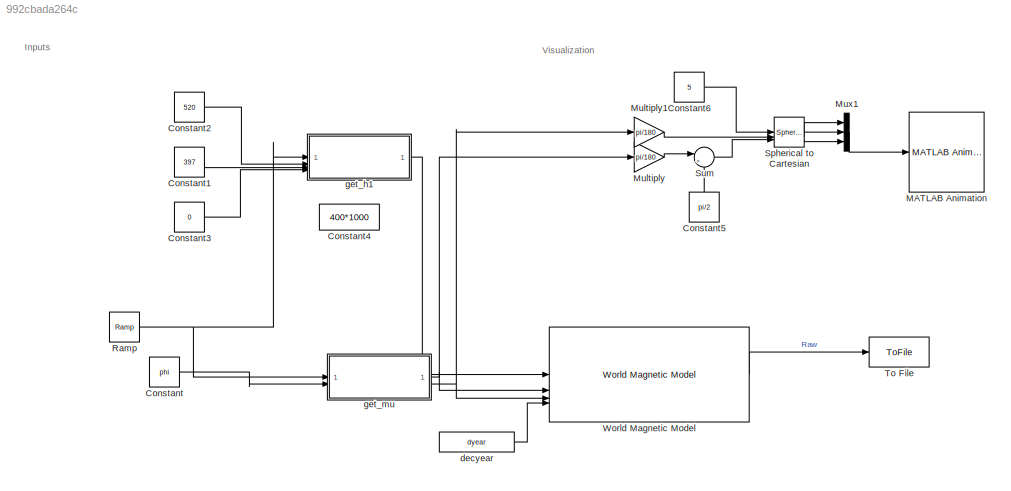
MODEL slx_992cbada264c
KIND model
CONFIG AbsTol = auto
CONFIG EnableMultiTasking = off
CONFIG FixedStep = 1
CONFIG MaxStep = 10
CONFIG MinStep = 1
CONFIG RelTol = 1e-3
CONFIG SampleTimeConstraint = Unconstrained
CONFIG SolverName = FixedStepAuto
CONFIG StartTime = 0.0
CONFIG StopTime = 24670
WORKSPACE source: mxarray member
WORKSPACE dyear = 2024.38251366
WORKSPACE phi = 1.71042266695
BLOCK [Constant] Constant
  Value = phi
BLOCK [Constant] Constant1
  Value = 397
BLOCK [Constant] Constant2
  Value = 520
BLOCK [Constant] Constant3
  Value = 0
BLOCK [Constant] Constant4
  Value = 400*1000
BLOCK [Constant] Constant5
  NameLocation = right
  Value = pi/2
BLOCK [Constant] Constant6
  Value = 5
BLOCK [Reference] MATLAB Animation  REF=aerolibanim/MATLAB
Animation
  Commented = on
  SourceBlock = aerolibanim/MATLAB\nAnimation
  SourceType = AeroMATLABAnimation
  Tag = Matlab Animation 6 DOF
BLOCK [Gain] Multiply
  Gain = pi/180
BLOCK [Gain] Multiply1
  Gain = pi/180
BLOCK [Mux] Mux1
  DisplayOption = bar
  Inputs = 3
BLOCK [Reference] Ramp  REF=simulink/Sources/Ramp
  SourceBlock = simulink/Sources/Ramp
  SourceType = Ramp
BLOCK [Reference] Spherical to Cartesian  REF=simulink_extras/Transformations/Spherical to
Cartesian
  SourceBlock = simulink_extras/Transformations/Spherical to\nCartesian
  SourceType = Sph2Cart
BLOCK [Sum] Sum
  Inputs = |+-
BLOCK [ToFile] To File
  Filename = MagFieldData.mat
  MatrixName = XYZ
  SaveFormat = Timeseries
BLOCK [Reference] World Magnetic Model  REF=aerolibgravity2/World Magnetic Model
  AttributesFormatString = %<model>
  SourceBlock = aerolibgravity2/World Magnetic Model
  SourceType = WorldMagneticModel
BLOCK [Constant] decyear
  Value = dyear
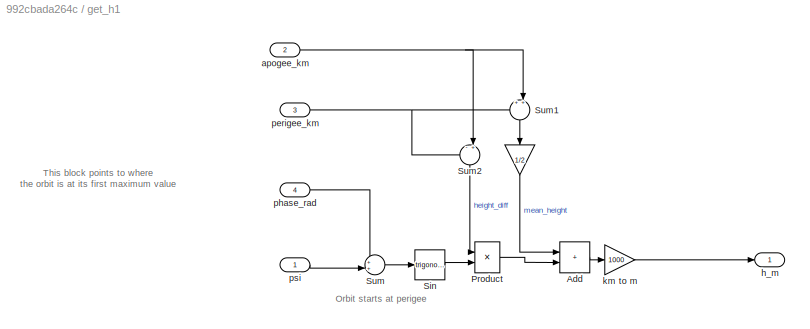
BLOCK [SubSystem] get_h1
BLOCK [Gain] get_h1/ 
  Gain = 1/2
  NameLocation = right
BLOCK [Sum] get_h1/Add
  IconShape = rectangular
BLOCK [Product] get_h1/Product
BLOCK [Trigonometry] get_h1/Sin
BLOCK [Sum] get_h1/Sum
  Inputs = ++|
BLOCK [Sum] get_h1/Sum1
  Inputs = ++|
  NameLocation = left
BLOCK [Sum] get_h1/Sum2
  Inputs = -+|
  NameLocation = left
BLOCK [Inport] get_h1/apogee_km
  Port = 2
BLOCK [Outport] get_h1/h_m
BLOCK [Gain] get_h1/km to m
  Gain = 1000
  NameLocation = top
BLOCK [Inport] get_h1/perigee_km
  Port = 3
BLOCK [Inport] get_h1/phase_rad
  Port = 4
BLOCK [Inport] get_h1/psi
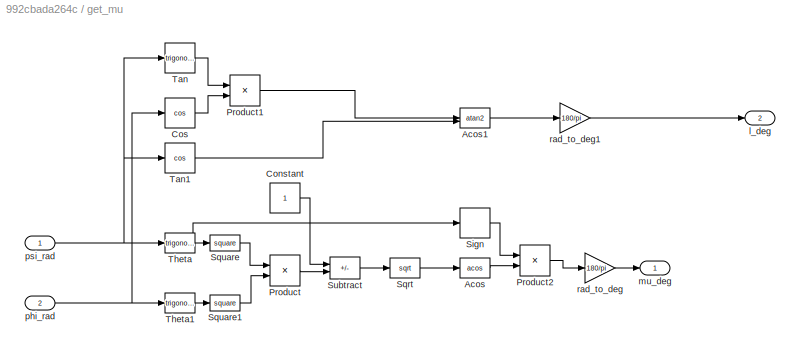
BLOCK [SubSystem] get_mu
BLOCK [Trigonometry] get_mu/Acos
  Operator = acos
BLOCK [Trigonometry] get_mu/Acos1
  Operator = atan2
BLOCK [Constant] get_mu/Constant
BLOCK [Trigonometry] get_mu/Cos
  Operator = cos
BLOCK [Product] get_mu/Product
BLOCK [Product] get_mu/Product1
BLOCK [Product] get_mu/Product2
BLOCK [Signum] get_mu/Sign
BLOCK [Sqrt] get_mu/Sqrt
BLOCK [Math] get_mu/Square
  Operator = square
BLOCK [Math] get_mu/Square1
  Operator = square
BLOCK [Sum] get_mu/Subtract
  IconShape = rectangular
  Inputs = +-
BLOCK [Trigonometry] get_mu/Tan
BLOCK [Trigonometry] get_mu/Tan1
  Operator = cos
BLOCK [Trigonometry] get_mu/Theta
BLOCK [Trigonometry] get_mu/Theta1
BLOCK [Outport] get_mu/l_deg
  Port = 2
BLOCK [Outport] get_mu/mu_deg
BLOCK [Inport] get_mu/phi_rad
  Port = 2
BLOCK [Inport] get_mu/psi_rad
BLOCK [Gain] get_mu/rad_to_deg
  Gain = 180/pi
BLOCK [Gain] get_mu/rad_to_deg1
  Gain = 180/pi
ANNOTATION (root): Inputs
ANNOTATION (root): Visualization
ANNOTATION get_h1: Orbit starts at perigee
ANNOTATION get_h1: This block points to where the orbit is at its first maximum value
LINE Constant1:1 -> get_h1:3
LINE Constant2:1 -> get_h1:2
LINE Constant3:1 -> get_h1:4
LINE Constant5:1 -> Sum:2
LINE Constant6:1 -> Spherical to Cartesian:1
LINE Constant:1 -> get_mu:2
LINE Multiply1:1 -> Spherical to Cartesian:2
LINE Multiply:1 -> Sum:1
LINE Mux1:1 -> MATLAB Animation:1
NET Ramp:1 -> get_h1:1, get_mu:1
LINE Spherical to Cartesian:1 -> Mux1:1
LINE Spherical to Cartesian:2 -> Mux1:2
LINE Spherical to Cartesian:3 -> Mux1:3
LINE Sum:1 -> Spherical to Cartesian:3
LINE World Magnetic Model:1 -> To File:1
LINE decyear:1 -> World Magnetic Model:4
LINE get_h1/ :1 -> get_h1/Add:1
LINE get_h1/Add:1 -> get_h1/km to m:1
LINE get_h1/Product:1 -> get_h1/Add:2
LINE get_h1/Sin:1 -> get_h1/Product:2
LINE get_h1/Sum1:1 -> get_h1/ :1
LINE get_h1/Sum2:1 -> get_h1/Product:1
LINE get_h1/Sum:1 -> get_h1/Sin:1
NET get_h1/apogee_km:1 -> get_h1/Sum1:2, get_h1/Sum2:2
LINE get_h1/km to m:1 -> get_h1/h_m:1
NET get_h1/perigee_km:1 -> get_h1/Sum1:1, get_h1/Sum2:1
LINE get_h1/phase_rad:1 -> get_h1/Sum:1
LINE get_h1/psi:1 -> get_h1/Sum:2
LINE get_h1:1 -> World Magnetic Model:1
LINE get_mu/Acos1:1 -> get_mu/rad_to_deg1:1
LINE get_mu/Acos:1 -> get_mu/Product2:2
LINE get_mu/Constant:1 -> get_mu/Subtract:1
LINE get_mu/Cos:1 -> get_mu/Product1:2
LINE get_mu/Product1:1 -> get_mu/Acos1:1
LINE get_mu/Product2:1 -> get_mu/rad_to_deg:1
LINE get_mu/Product:1 -> get_mu/Subtract:2
LINE get_mu/Sign:1 -> get_mu/Product2:1
LINE get_mu/Sqrt:1 -> get_mu/Acos:1
LINE get_mu/Square1:1 -> get_mu/Product:2
LINE get_mu/Square:1 -> get_mu/Product:1
LINE get_mu/Subtract:1 -> get_mu/Sqrt:1
LINE get_mu/Tan1:1 -> get_mu/Acos1:2
LINE get_mu/Tan:1 -> get_mu/Product1:1
LINE get_mu/Theta1:1 -> get_mu/Square1:1
NET get_mu/Theta:1 -> get_mu/Sign:1, get_mu/Square:1
NET get_mu/phi_rad:1 -> get_mu/Cos:1, get_mu/Theta1:1
NET get_mu/psi_rad:1 -> get_mu/Tan1:1, get_mu/Tan:1, get_mu/Theta:1
LINE get_mu/rad_to_deg1:1 -> get_mu/l_deg:1
LINE get_mu/rad_to_deg:1 -> get_mu/mu_deg:1
NET get_mu:1 -> Multiply:1, World Magnetic Model:2
NET get_mu:2 -> Multiply1:1, World Magnetic Model:3
note: NET lines group one-source signal fan-out (src -> all destinations, sorted); 1:1 wires keep LINE
